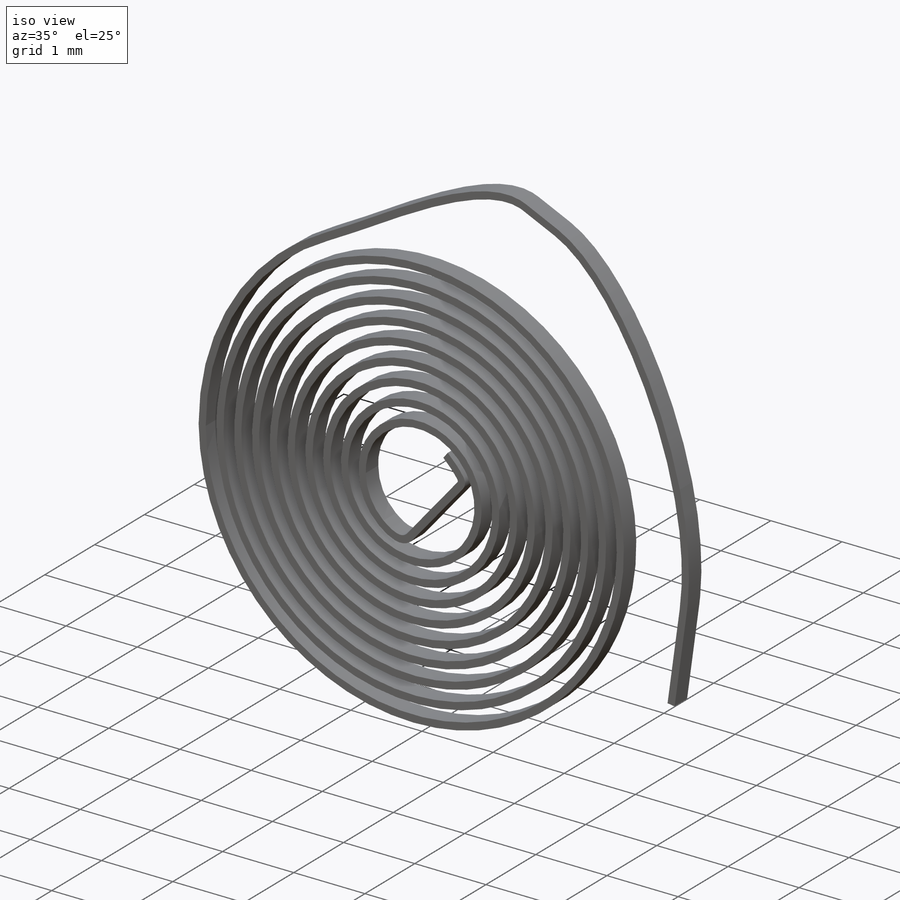
[diagram: iso view]
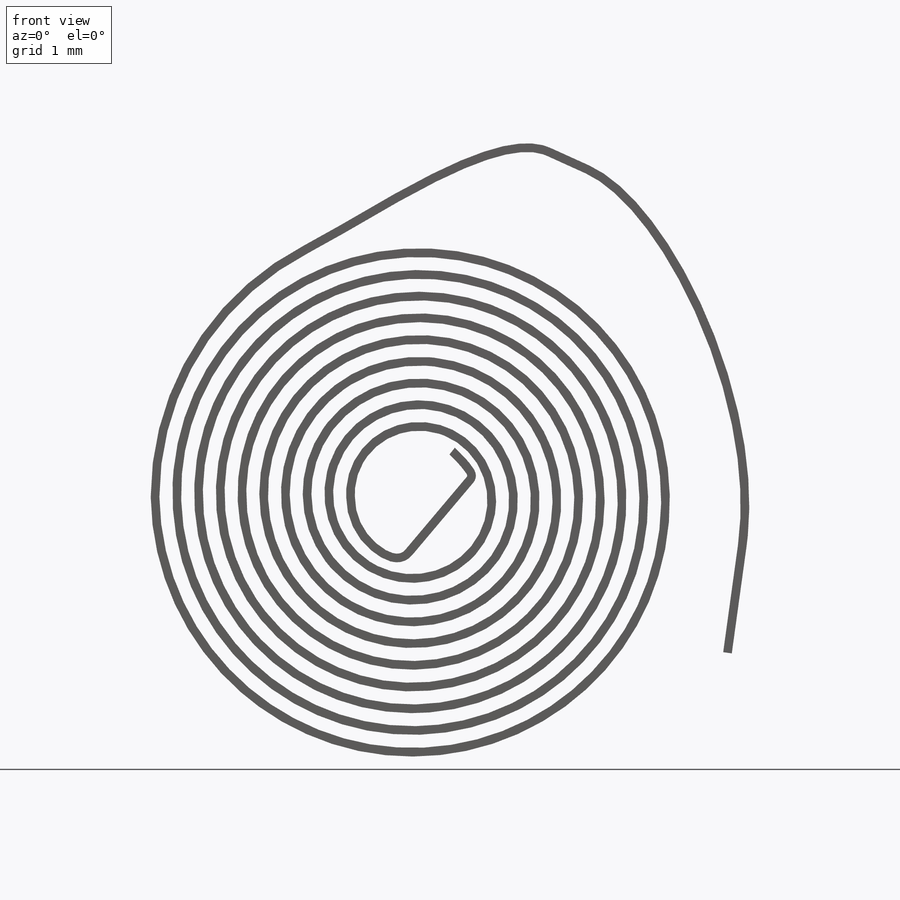
[diagram: front view]
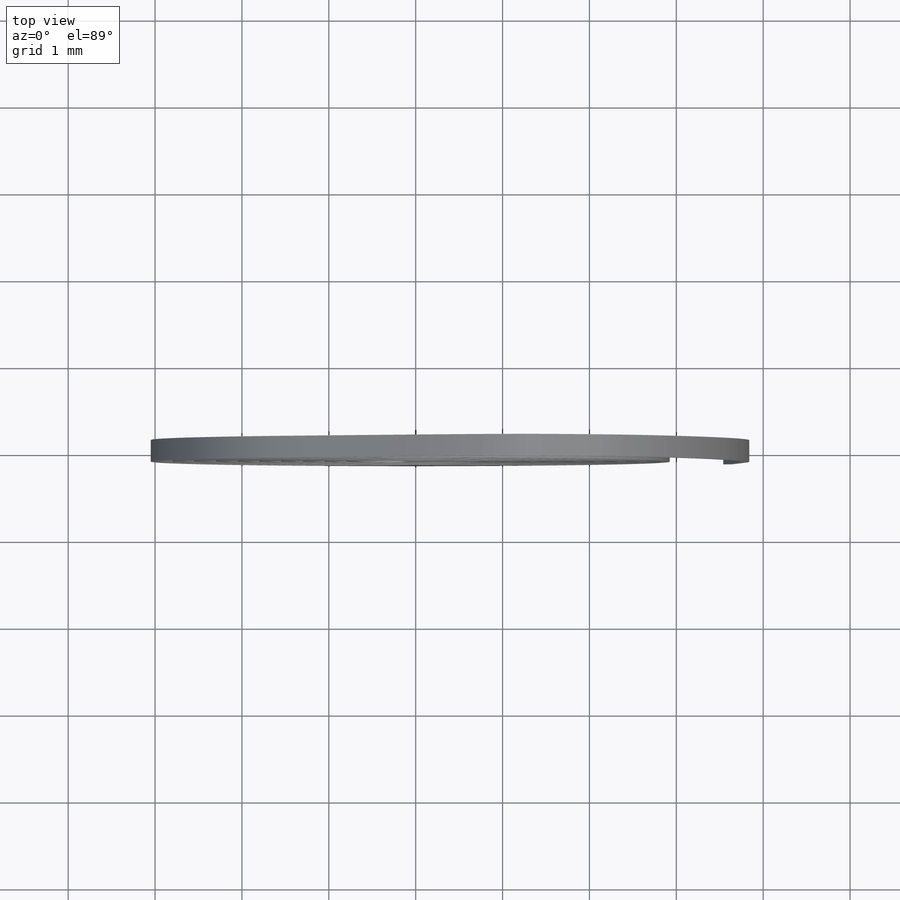
[diagram: top view]
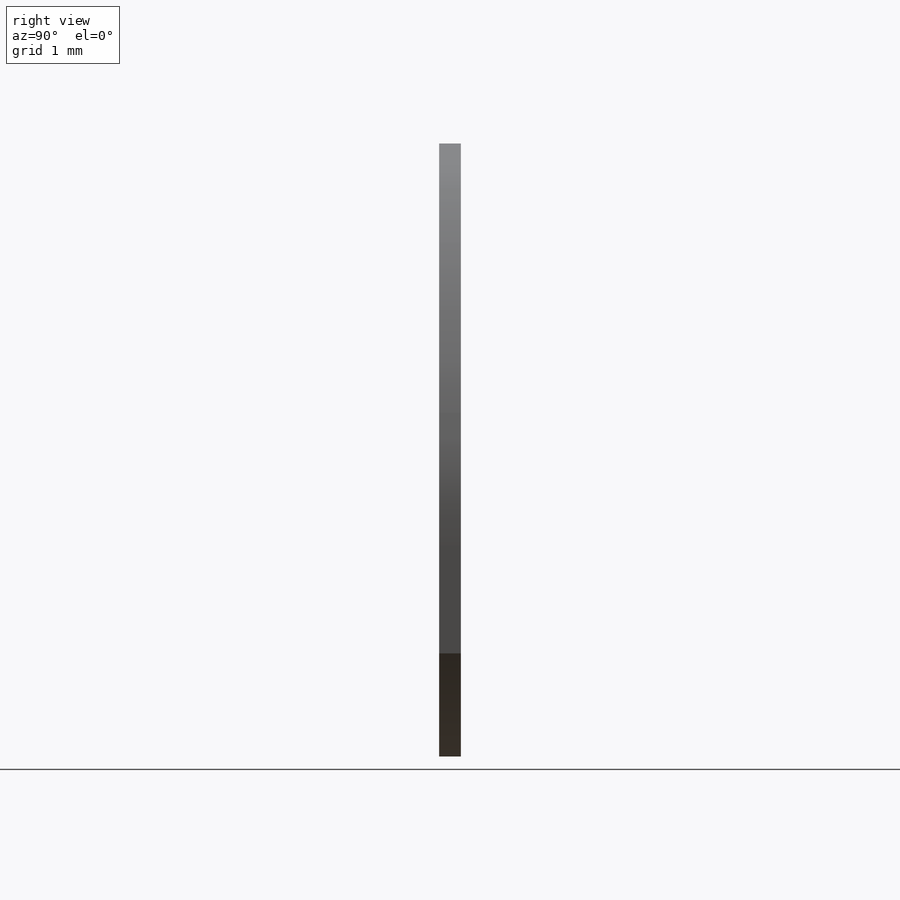
[diagram: right view]
SOLIDWORKS PART (.sldprt)
format: sldprt  version: not decoded by parser v0  size: 21,350,400 bytes
history: native  units: mm
features: sketch x7, plane x5, sweep x3, material x1, helix x1 (+8 scaffold rows collapsed)
feature tree (25):
  scaffold x8  (default folders/planes/origin — collapsed)
  material  "PUR"
  plane  "Alzado"
  plane  "Planta"
  plane  "Vista lateral"
  sketch  "Croquis1"  dims[D1=1.5mm]
  helix  "Hélice/Espiral1"  Pitch=0.25mm
  sketch  "Croquis2"  dims[c1.D1=0.1mm c1.D2=0.25mm c1.D3=~4.350236mm c2.D3=90.0deg c3.D3=~4.350236mm c4.D3=90.0deg c5.D3=2.95mm]
  sweep  "Barrer1"
  sketch  "Croquis3"  dims[c1.D5=~12.938598mm c1.D7=~3.207603mm c1.D8=~3.573747mm c1.D1=0.5mm c1.D2=1.25mm c1.D3=2.5mm c1.D4=3.0mm c2.D5=3.0mm c2.D3=3.8mm c2.D4=1.0mm c2.D6=0.5mm c2.D7=4.25mm c2.D1=0.5mm c2.D2=0.5mm c3.D4=1.0mm c3.D6=1.25mm c3.D1=0.5mm c3.D2=~1.098345mm c4.D4=~0.499841mm c4.D1=0.5mm c5.D4=~0.499841mm c5.D5=0.05mm c5.D7=~2.565733mm c6.D7=30.0deg c6.D4=0.5mm c6.D2=0.25mm c6.D8=2.5mm c6.D9=~0.291112mm c6.D5=0.05mm]
  sketch  "Croquis4"
  plane  "Plano1"
  sketch  "Croquis5"  dims[D1=0.25mm D2=0.1mm D3=0.05mm D4=0.125mm]
  sweep  "Barrer2"
  plane  "Plano2"  Offset=0.25mm
  sketch  "Croquis7"
  sketch  "Croquis11"  dims[c1.D2=0.5mm c1.D1=~0.50038mm c2.D2=1.25mm c2.D4=0.675mm c2.D1=~0.495398mm c3.D1=150.0deg c4.D1=~0.50038mm c5.D1=130.0deg c5.D3=0.35mm]
  sweep  "Barrer4"
decode coverage: 6 of 11 modeling features carry decoded parameters
note: ~ marks probable driven/reference dimensions
note: suppression state not decoded; provenance and decode notes live in map.json
